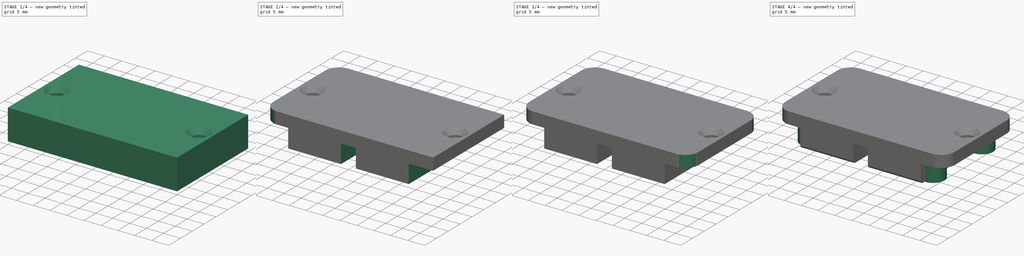
[diagram: build sequence overview — one tinted view per stage of 4, left to right]
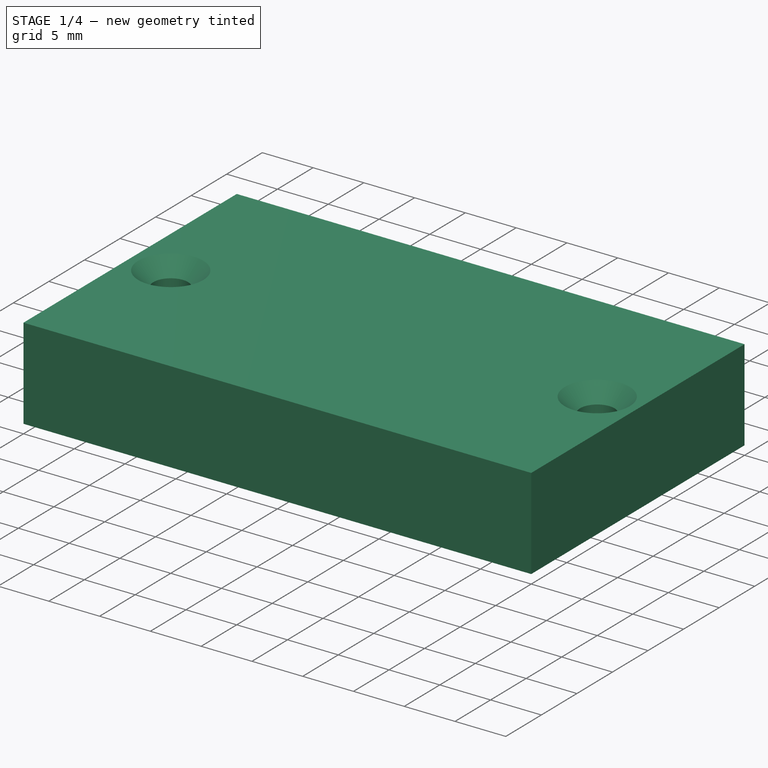
[diagram: stage 1 of 4 — iso view after this stage's code; geometry added in this stage tinted green]
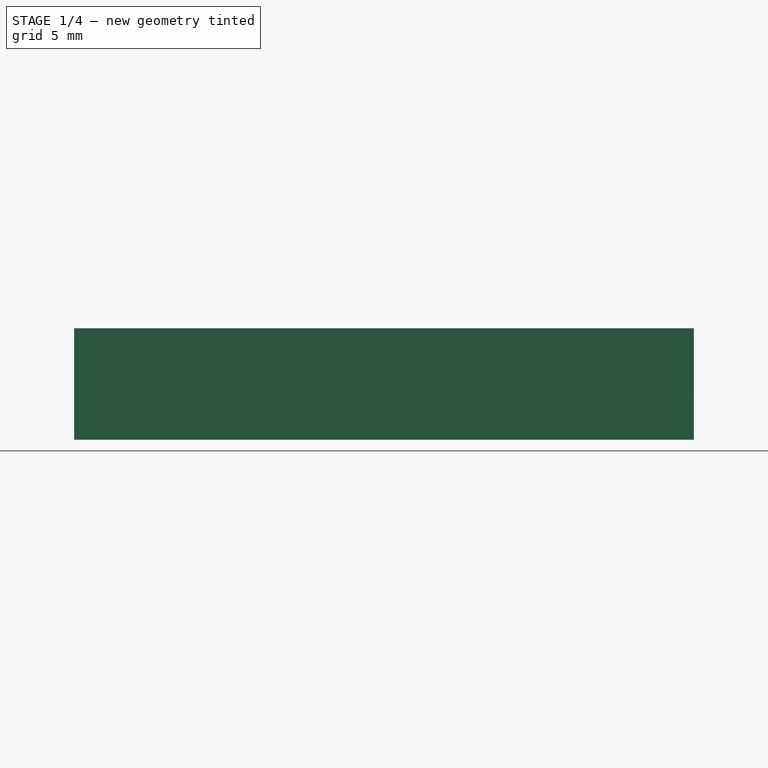
[diagram: stage 1 of 4 — front view after this stage's code; geometry added in this stage tinted green]
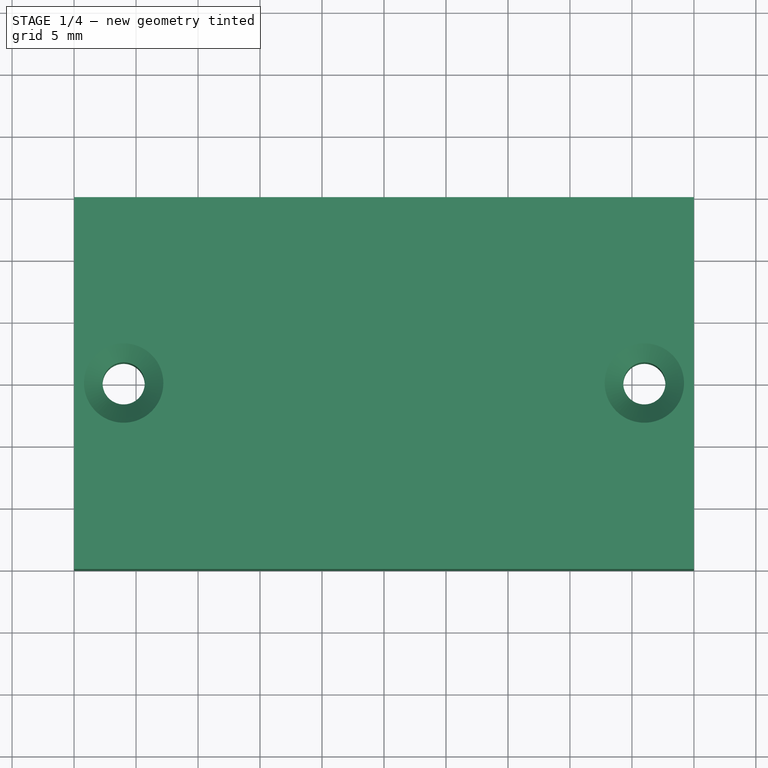
[diagram: stage 1 of 4 — top view after this stage's code; geometry added in this stage tinted green]
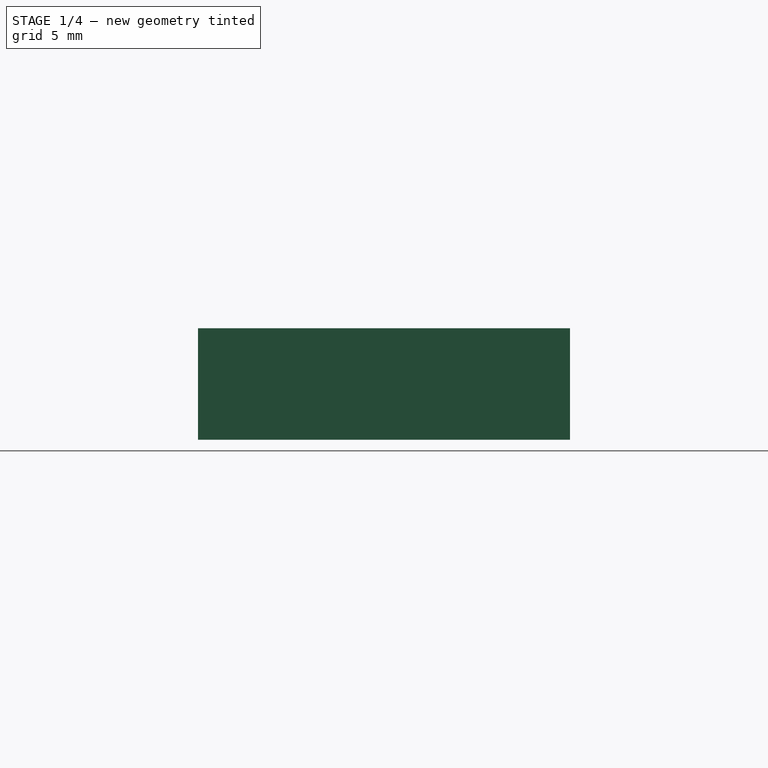
[diagram: stage 1 of 4 — right view after this stage's code; geometry added in this stage tinted green]
FCSTD DOCUMENT  (FreeCAD 0.16R6706 (Git))
Label: PoweBarLid
License: All rights reserved
LicenseURL: http://en.wikipedia.org/wiki/All_rights_reserved
objects: PartDesign::Fillet×8, Sketcher::SketchObject×3, PartDesign::Pad×2, PartDesign::Chamfer×2, PartDesign::Pocket×1
note: 19 computed .brp shape members not serialized (recipe doc carries the construction recipe); baked Part::Feature solids carry a one-line shape summary decoded from their .brp

FEATURE [Sketcher::SketchObject] Sketch
  sketch-geometry (6):
    g0: LineSegment StartX=-25 StartY=15 StartZ=0 EndX=25 EndY=15 EndZ=0
    g1: LineSegment StartX=25 StartY=15 StartZ=0 EndX=25 EndY=-15 EndZ=0
    g2: LineSegment StartX=25 StartY=-15 StartZ=0 EndX=-25 EndY=-15 EndZ=0
    g3: LineSegment StartX=-25 StartY=-15 StartZ=0 EndX=-25 EndY=15 EndZ=0
    g4: Circle CenterX=-21 CenterY=0 CenterZ=0 NormalX=0 NormalY=0 NormalZ=1 Radius=1.7
    g5: Circle CenterX=21 CenterY=0 CenterZ=0 NormalX=0 NormalY=0 NormalZ=1 Radius=1.7
  constraints (16):
    c: Coincident(g0,g1)
    c: Coincident(g1,g2)
    c: Coincident(g2,g3)
    c: Coincident(g3,g0)
    c: Horizontal(g0)
    c: Horizontal(g2)
    c: Vertical(g1)
    c: Vertical(g3)
    c: Symmetric(g2,g0,g-1)
    c: DistanceX(g0,g0) = 50
    c: DistanceY(g1,g0) = 30
    c: PointOnObject(g5,g-1)
    c: Radius(g4) = 1.7
    c: Equal(g4,g5)
    c: DistanceX(g4,g5) = 42
    c: Symmetric(g4,g5,g-1)
FEATURE [PartDesign::Pad] Pad
  Length = 9
  Length2 = 100
  Sketch = -> Sketch
  Type = 0
FEATURE [PartDesign::Chamfer] Chamfer
  Base = -> Pad [Edge18]
  Size = 1.5
FEATURE [PartDesign::Chamfer] Chamfer001
  Base = -> Chamfer [Edge15]
  Size = 1.5
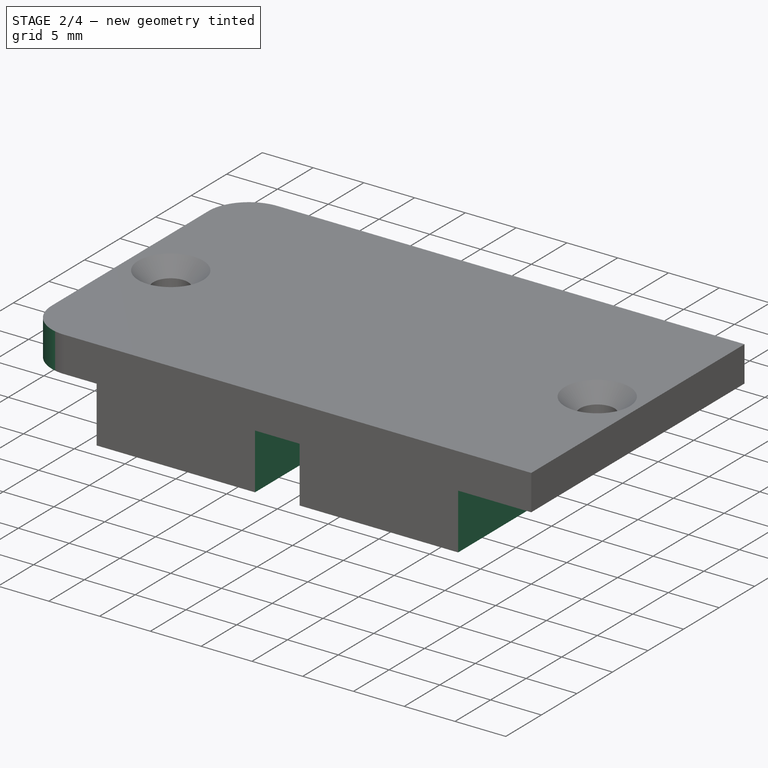
[diagram: stage 2 of 4 — iso view after this stage's code; geometry added in this stage tinted green]
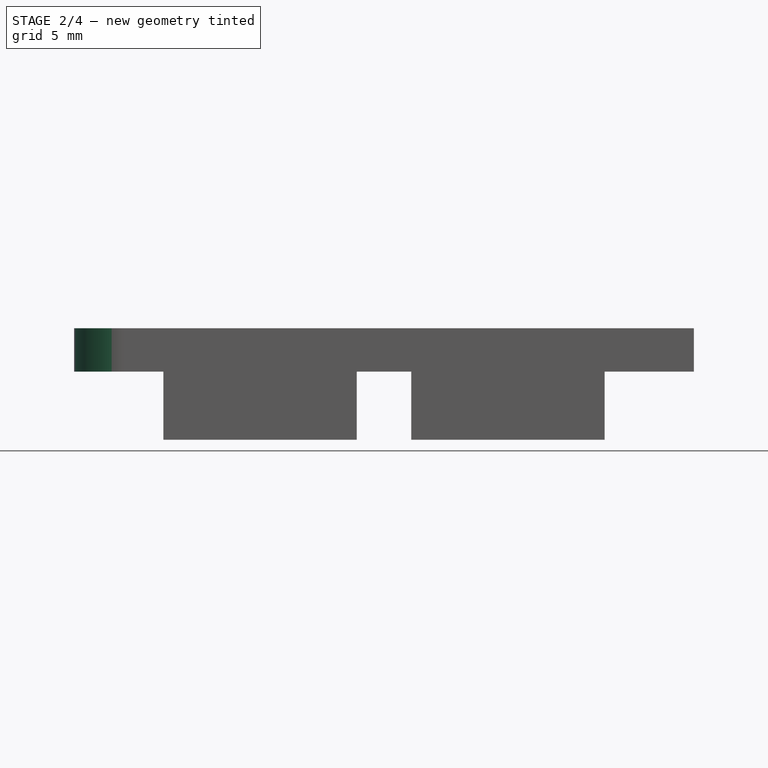
[diagram: stage 2 of 4 — front view after this stage's code; geometry added in this stage tinted green]
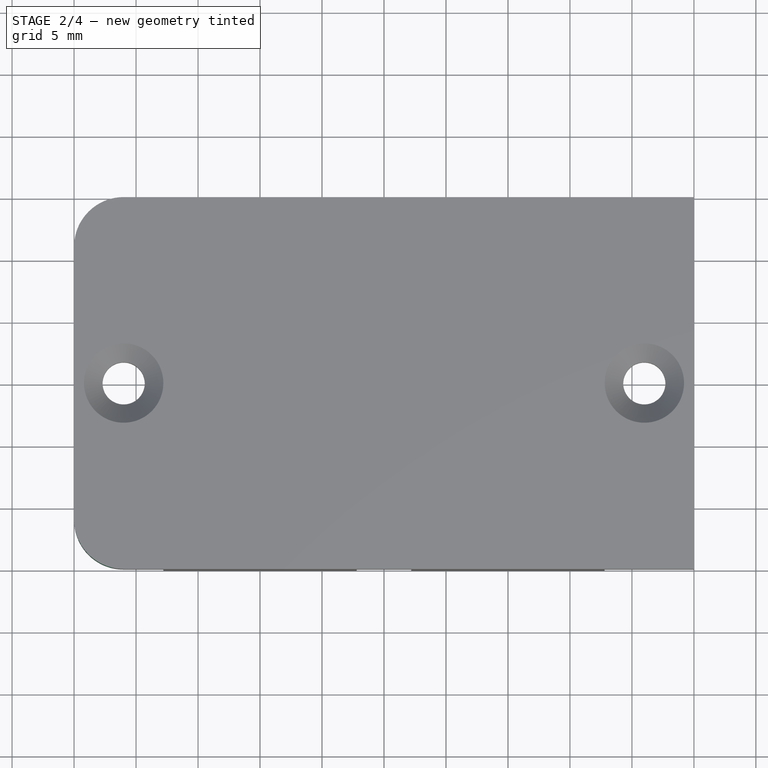
[diagram: stage 2 of 4 — top view after this stage's code; geometry added in this stage tinted green]
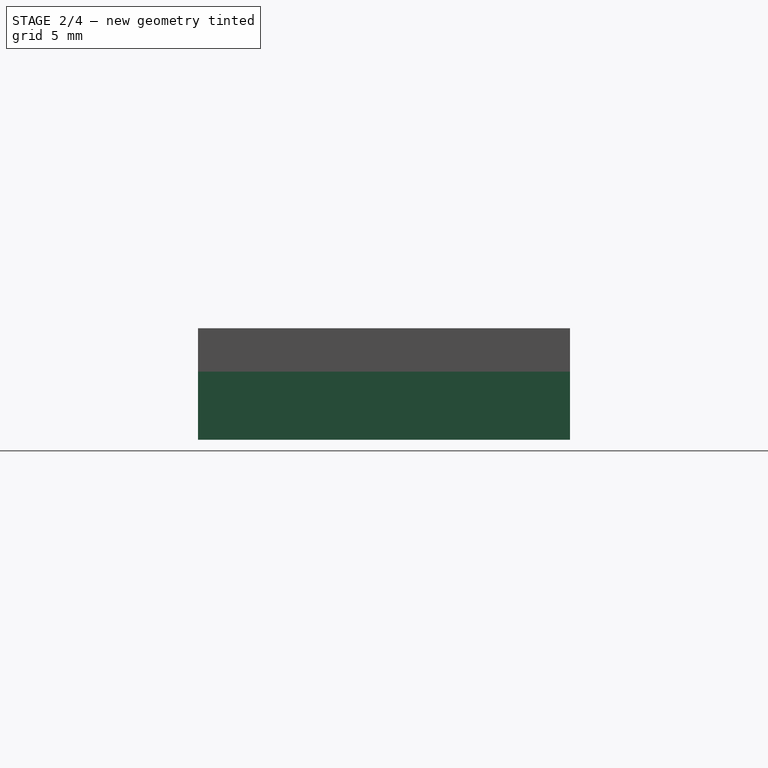
[diagram: stage 2 of 4 — right view after this stage's code; geometry added in this stage tinted green]
FEATURE [Sketcher::SketchObject] Sketch001
  Placement = pos=(0,0,0) rot=(1,0,0;3.14159rad)
  Support = -> Chamfer001 [Face10]
  sketch-geometry (18):
    g0: LineSegment StartX=-2.2 StartY=16 StartZ=0 EndX=2.2 EndY=16 EndZ=0
    g1: LineSegment StartX=2.2 StartY=16 StartZ=0 EndX=2.2 EndY=-16 EndZ=0
    g2: LineSegment StartX=2.2 StartY=-16 StartZ=0 EndX=-2.2 EndY=-16 EndZ=0
    g3: LineSegment StartX=-2.2 StartY=-16 StartZ=0 EndX=-2.2 EndY=16 EndZ=0
    g4: LineSegment StartX=-26 StartY=16 StartZ=0 EndX=-17.8 EndY=16 EndZ=0
    g5: LineSegment StartX=-17.8 StartY=16 StartZ=0 EndX=-17.8 EndY=-16 EndZ=0
    g6: LineSegment StartX=-17.8 StartY=-16 StartZ=0 EndX=-26 EndY=-16 EndZ=0
    g7: LineSegment StartX=-26 StartY=-16 StartZ=0 EndX=-26 EndY=16 EndZ=0
    g8: LineSegment StartX=17.8 StartY=16 StartZ=0 EndX=26 EndY=16 EndZ=0
    g9: LineSegment StartX=26 StartY=16 StartZ=0 EndX=26 EndY=-16 EndZ=0
    g10: LineSegment StartX=26 StartY=-16 StartZ=0 EndX=17.8 EndY=-16 EndZ=0
    g11: LineSegment StartX=17.8 StartY=-16 StartZ=0 EndX=17.8 EndY=16 EndZ=0
    g12: LineSegment [constr] StartX=-17.8 StartY=16 StartZ=0 EndX=-2.2 EndY=16 EndZ=0
    g13: LineSegment [constr] StartX=2.2 StartY=16 StartZ=0 EndX=17.8 EndY=16 EndZ=0
    g14: LineSegment [constr] StartX=-17.8 StartY=-16 StartZ=0 EndX=-2.2 EndY=-16 EndZ=0
    g15: LineSegment [constr] StartX=2.2 StartY=-16 StartZ=0 EndX=17.8 EndY=-16 EndZ=0
    g16: Circle CenterX=-10 CenterY=0 CenterZ=0 NormalX=0 NormalY=0 NormalZ=1 Radius=2.6
    g17: Circle CenterX=10 CenterY=0 CenterZ=0 NormalX=0 NormalY=0 NormalZ=1 Radius=2.6
  constraints (49):
    c: Coincident(g0,g1)
    c: Coincident(g1,g2)
    c: Coincident(g2,g3)
    c: Coincident(g3,g0)
    c: Horizontal(g0)
    c: Horizontal(g2)
    c: Vertical(g1)
    c: Vertical(g3)
    c: Coincident(g4,g5)
    c: Coincident(g5,g6)
    c: Coincident(g6,g7)
    c: Coincident(g7,g4)
    c: Horizontal(g4)
    c: Horizontal(g6)
    c: Vertical(g5)
    c: Vertical(g7)
    c: Coincident(g8,g9)
    c: Coincident(g9,g10)
    c: Coincident(g10,g11)
    c: Coincident(g11,g8)
    c: Horizontal(g8)
    c: Horizontal(g10)
    c: Vertical(g9)
    c: Vertical(g11)
    c: Coincident(g12,g4)
    c: Coincident(g12,g0)
    c: Horizontal(g12)
    c: Coincident(g13,g0)
    c: Coincident(g13,g8)
    c: Horizontal(g13)
    c: Coincident(g14,g5)
    c: Coincident(g14,g2)
    c: Coincident(g15,g1)
    c: Coincident(g15,g10)
    c: Horizontal(g15)
    c: Horizontal(g14)
    c: Symmetric(g6,g8,g-1)
    c: Symmetric(g0,g2,g-1)
    c: DistanceX(g0,g0) = 4.4
    c: DistanceX(g4,g8) = 52
    c: Equal(g12,g13)
    c: DistanceX(g4,g0) = 15.6
    c: DistanceY(g6,g4) = 32
    c: PointOnObject(g16,g-1)
    c: PointOnObject(g17,g-1)
    c: DistanceX(g16,g17) = 20
    c: Symmetric(g16,g17,g-1)
    c: Radius(g16) = 2.6
    c: Equal(g16,g17)
FEATURE [PartDesign::Pocket] Pocket
  Length = 5.5
  Sketch = -> Sketch001
  Type = 0
FEATURE [PartDesign::Fillet] Fillet
  Base = -> Pocket [Edge33]
  Radius = 4
FEATURE [PartDesign::Fillet] Fillet001
  Base = -> Fillet [Edge24]
  Radius = 4
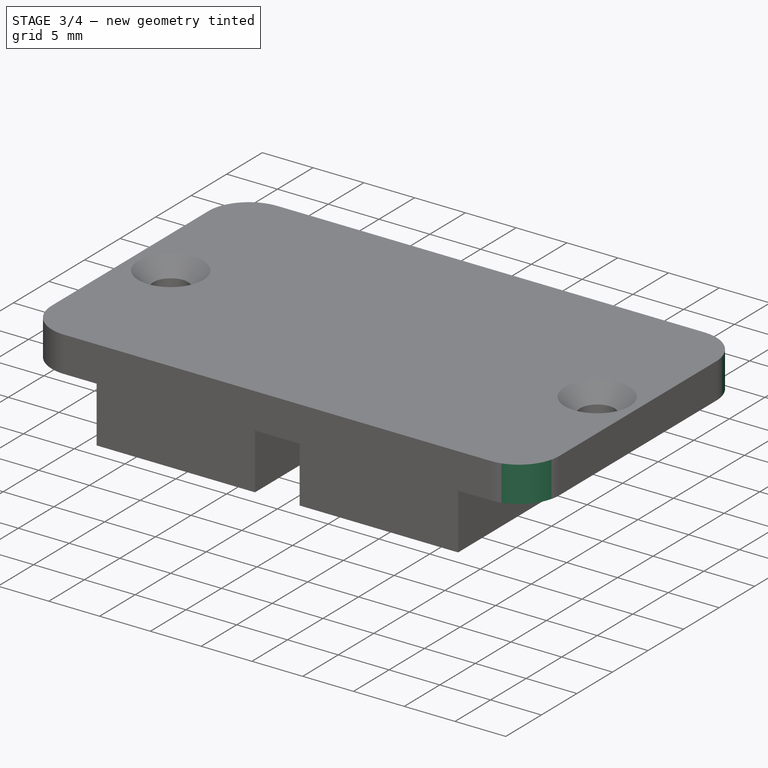
[diagram: stage 3 of 4 — iso view after this stage's code; geometry added in this stage tinted green]
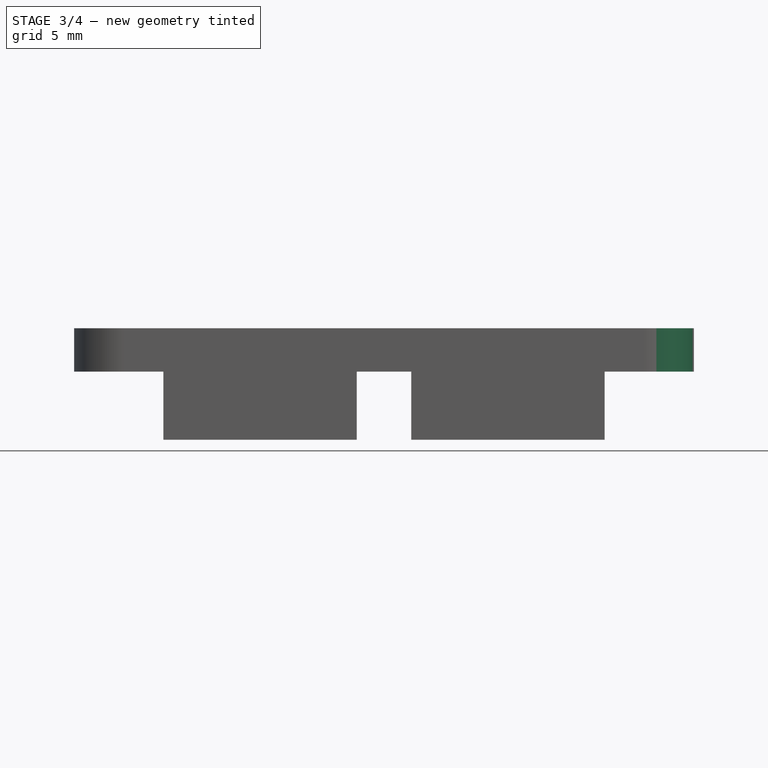
[diagram: stage 3 of 4 — front view after this stage's code; geometry added in this stage tinted green]
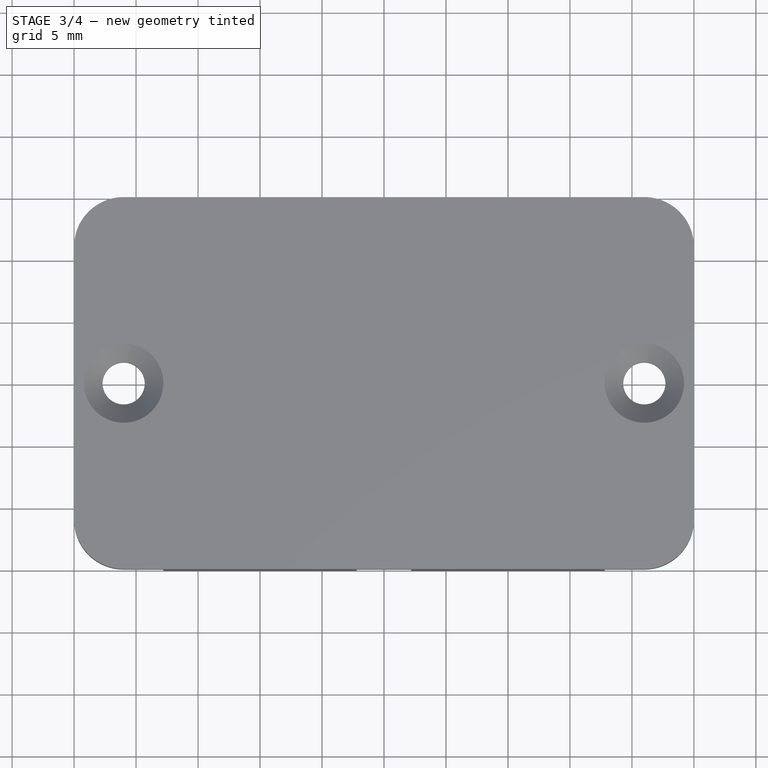
[diagram: stage 3 of 4 — top view after this stage's code; geometry added in this stage tinted green]
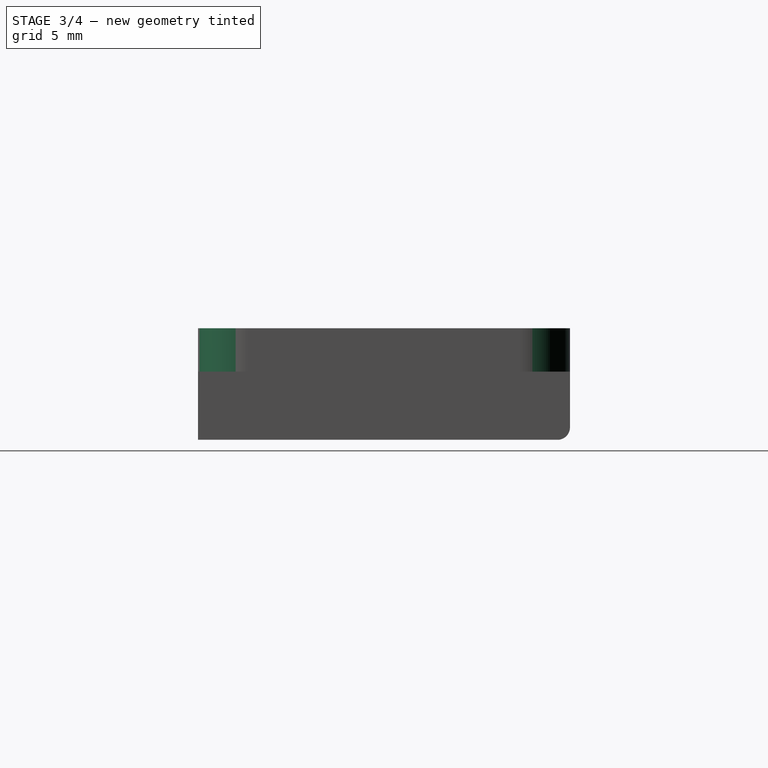
[diagram: stage 3 of 4 — right view after this stage's code; geometry added in this stage tinted green]
FEATURE [PartDesign::Fillet] Fillet002
  Base = -> Fillet001 [Edge19]
  Radius = 4
FEATURE [PartDesign::Fillet] Fillet003
  Base = -> Fillet002 [Edge26]
  Radius = 4
FEATURE [PartDesign::Fillet] Fillet004
  Base = -> Fillet003 [Edge34]
  Radius = 1
FEATURE [PartDesign::Fillet] Fillet005
  Base = -> Fillet004 [Edge10]
  Radius = 1
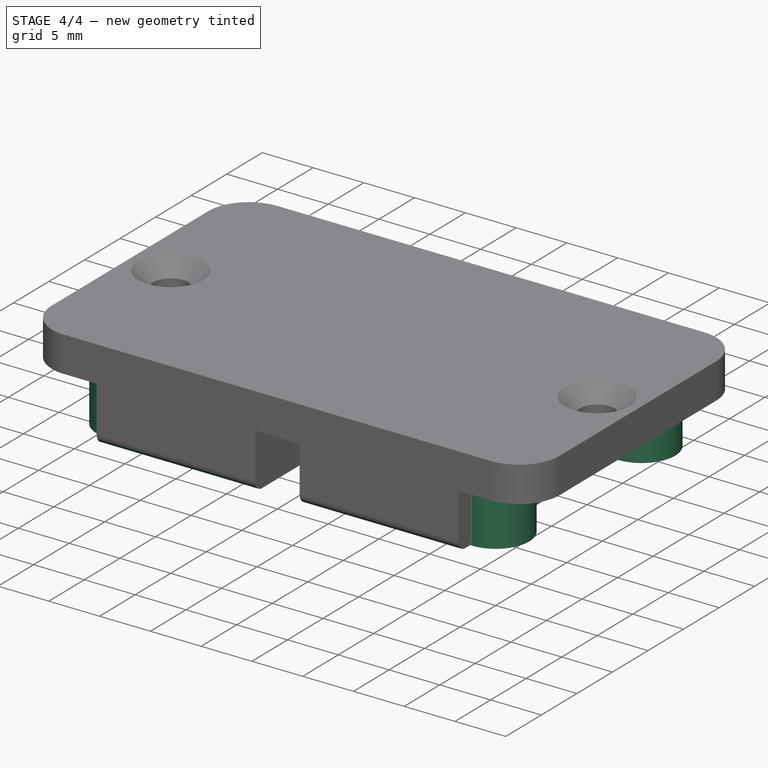
[diagram: stage 4 of 4 — iso view after this stage's code; geometry added in this stage tinted green]
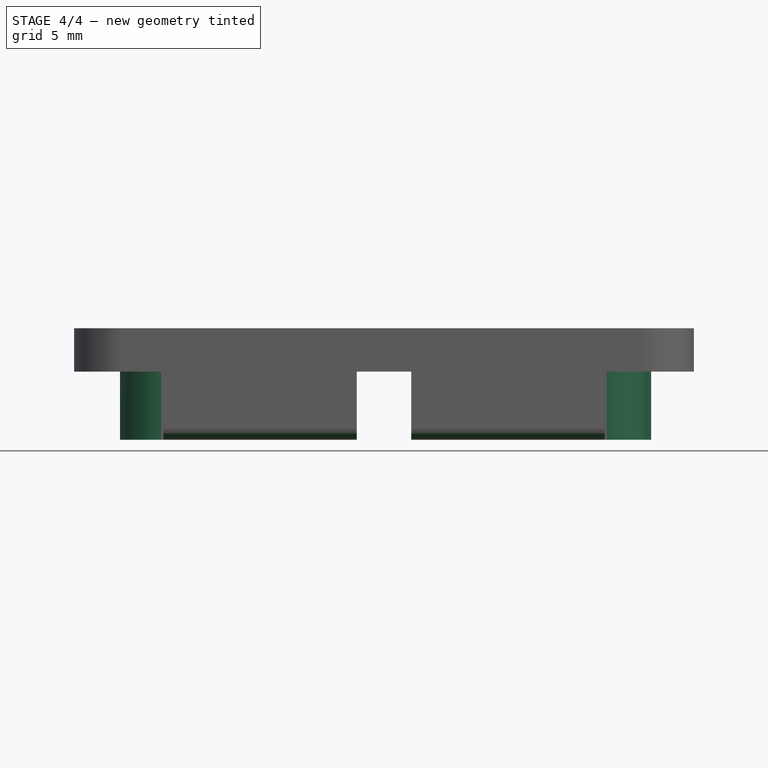
[diagram: stage 4 of 4 — front view after this stage's code; geometry added in this stage tinted green]
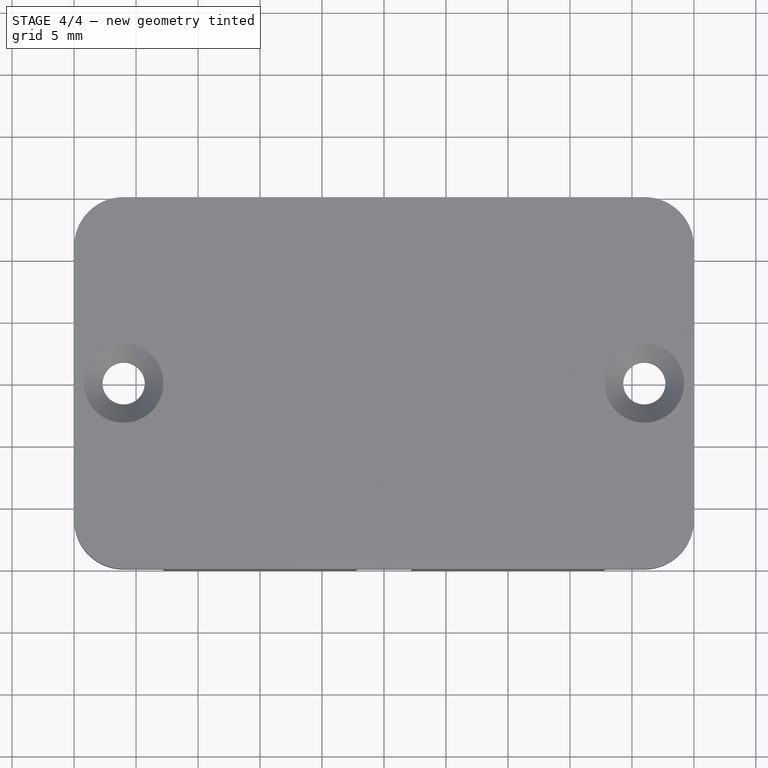
[diagram: stage 4 of 4 — top view after this stage's code; geometry added in this stage tinted green]
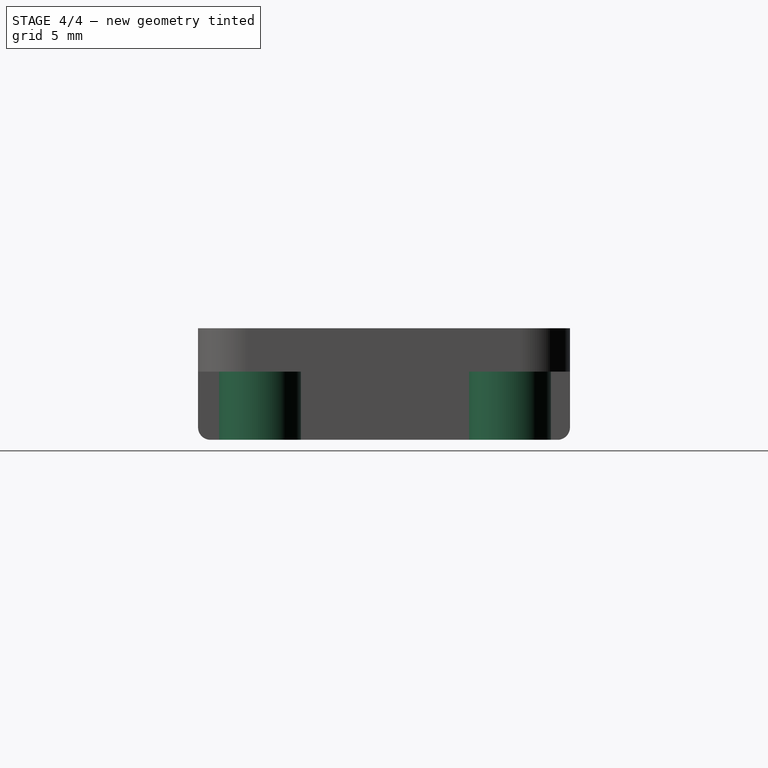
[diagram: stage 4 of 4 — right view after this stage's code; geometry added in this stage tinted green]
FEATURE [PartDesign::Fillet] Fillet006
  Base = -> Fillet005 [Edge57]
  Radius = 1
FEATURE [PartDesign::Fillet] Fillet007
  Base = -> Fillet006 [Edge22]
  Radius = 1
FEATURE [Sketcher::SketchObject] Sketch004
  Placement = pos=(0,0,5.5) rot=(1,0,0;3.14159rad)
  Support = -> Fillet007 [Face7]
  sketch-geometry (8):
    g0: LineSegment [constr] StartX=-18 StartY=10 StartZ=0 EndX=18 EndY=10 EndZ=0
    g1: LineSegment [constr] StartX=18 StartY=10 StartZ=0 EndX=18 EndY=-10 EndZ=0
    g2: LineSegment [constr] StartX=18 StartY=-10 StartZ=0 EndX=-18 EndY=-10 EndZ=0
    g3: LineSegment [constr] StartX=-18 StartY=-10 StartZ=0 EndX=-18 EndY=10 EndZ=0
    g4: Circle CenterX=-18 CenterY=10 CenterZ=0 NormalX=0 NormalY=0 NormalZ=1 Radius=3.3
    g5: Circle CenterX=18 CenterY=10 CenterZ=0 NormalX=0 NormalY=0 NormalZ=1 Radius=3.3
    g6: Circle CenterX=-18 CenterY=-10 CenterZ=0 NormalX=0 NormalY=0 NormalZ=1 Radius=3.3
    g7: Circle CenterX=18.2513 CenterY=-10.165 CenterZ=0 NormalX=0 NormalY=0 NormalZ=1 Radius=3.3
  constraints (18):
    c: Coincident(g0,g1)
    c: Coincident(g1,g2)
    c: Coincident(g2,g3)
    c: Coincident(g3,g0)
    c: Horizontal(g0)
    c: Horizontal(g2)
    c: Vertical(g1)
    c: Vertical(g3)
    c: Symmetric(g2,g0,g-1)
    c: DistanceY(g1,g0) = 20
    c: DistanceX(g0,g0) = 36
    c: Coincident(g4,g0)
    c: Coincident(g5,g0)
    c: Coincident(g6,g2)
    c: Radius(g6) = 3.3
    c: Equal(g6,g7)
    c: Equal(g6,g5)
    c: Equal(g6,g4)
FEATURE [PartDesign::Pad] Pad001
  Length = 5.5
  Length2 = 100
  Sketch = -> Sketch004
  Type = 0
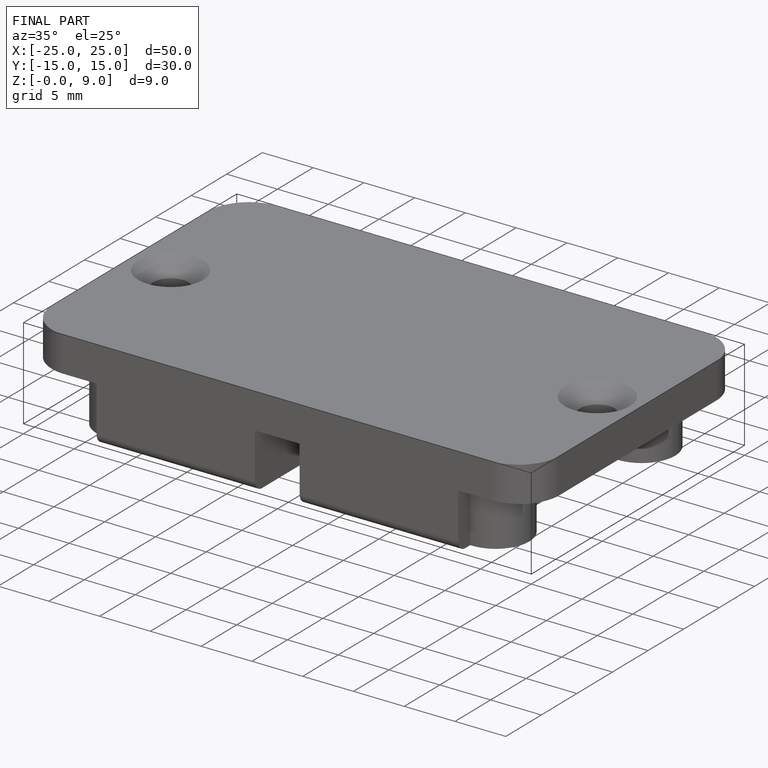
[diagram: finished part — iso view with bounding-box wireframe]
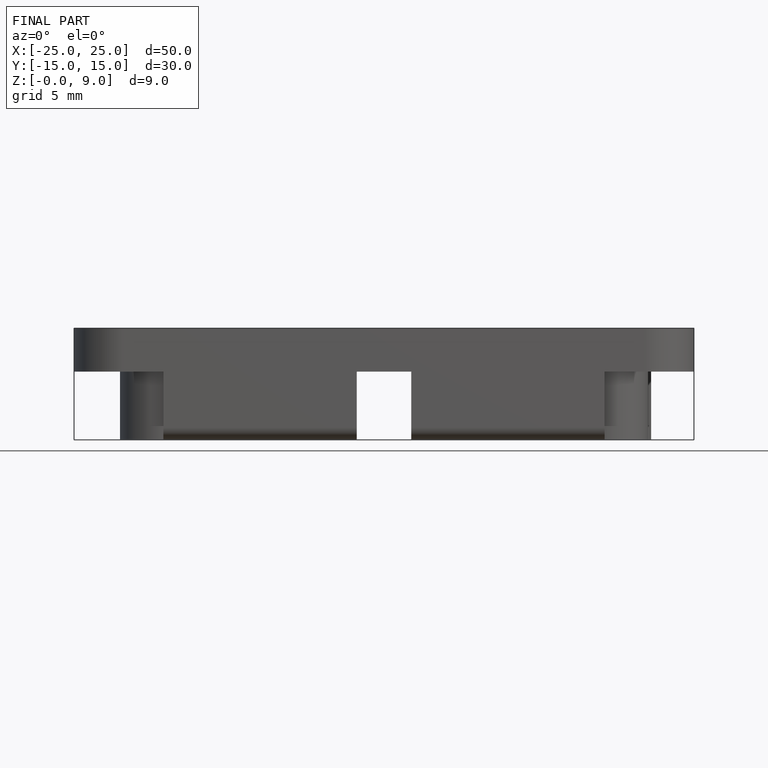
[diagram: finished part — front view with bounding-box wireframe]
